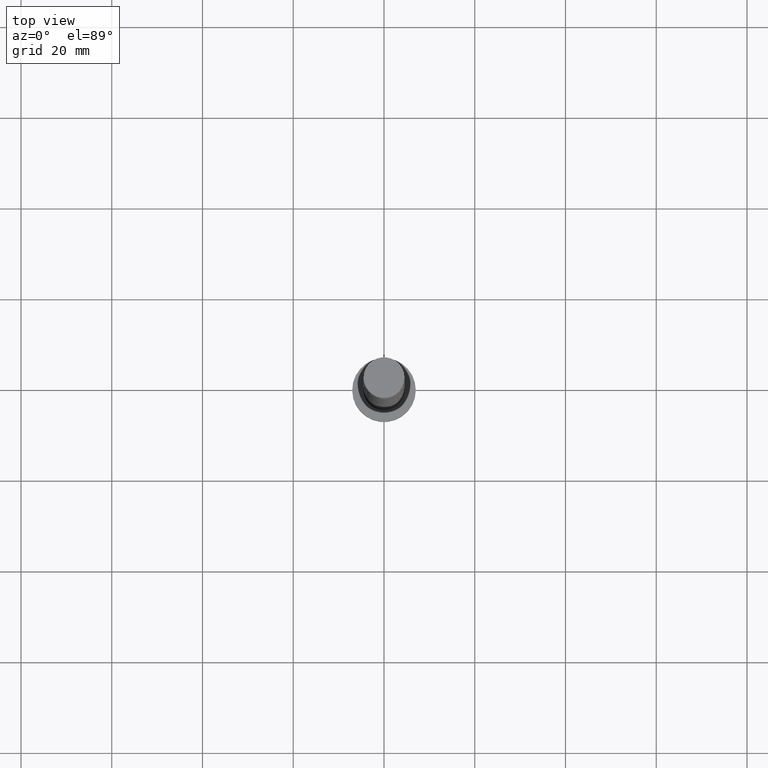
[diagram: clean part render]
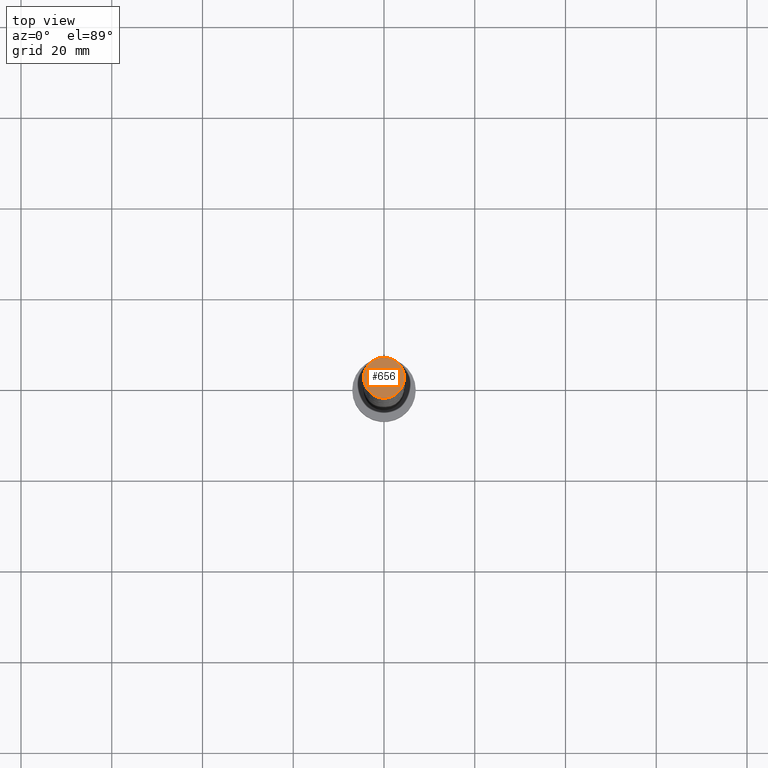
[diagram: same view with one face highlighted and labeled with its STEP entity id]
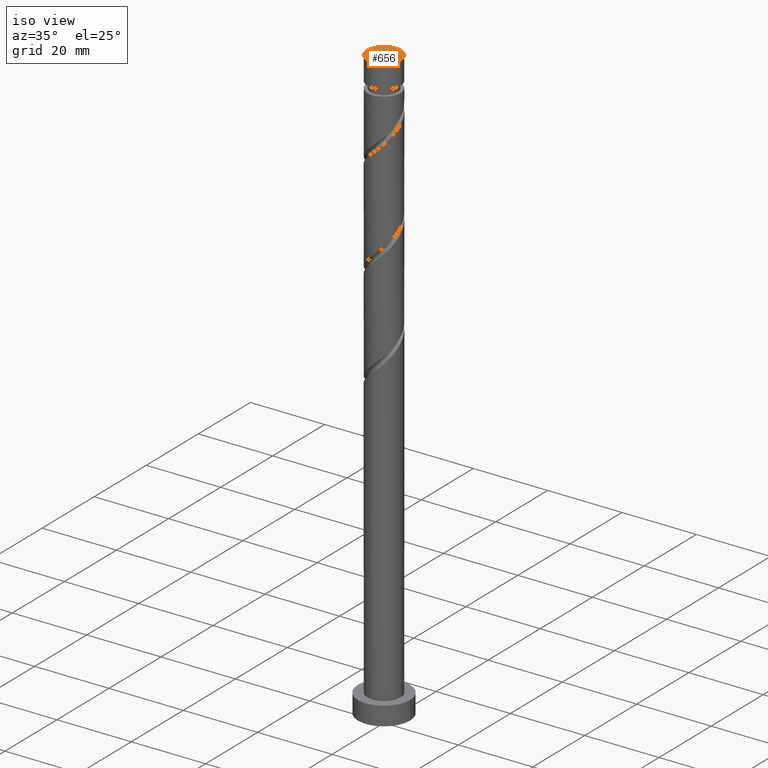
[diagram: same view with one face highlighted and labeled with its STEP entity id]
A machine part, top view. The second image highlights one B-rep face of the part: STEP entity #656.
A second angle (iso view) of the same face is appended — the face is thin or edge-on in the first view.
In plain terms, the highlighted planar face has unit normal (0, 0, 1).
Its self-contained STEP definition (entity closure, byte-faithful):
#44 = DIRECTION ( 'NONE',  ( 0.000000000000000000, 0.000000000000000000, 1.000000000000000000 ) ) ;
#174 = DIRECTION ( 'NONE',  ( 0.000000000000000000, 0.000000000000000000, 1.000000000000000000 ) ) ;
#195 = DIRECTION ( 'NONE',  ( 1.000000000000000000, 0.000000000000000000, 0.000000000000000000 ) ) ;
#231 = FACE_OUTER_BOUND ( 'NONE', #504, .T. ) ;
#360 = PLANE ( 'NONE',  #1340 ) ;
#362 = VERTEX_POINT ( 'NONE', #659 ) ;
#395 = CARTESIAN_POINT ( 'NONE',  ( 4.500000000000000000, 5.510910596163088569E-16, 160.0000000000000000 ) ) ;
#504 = EDGE_LOOP ( 'NONE', ( #1141, #1449 ) ) ;
#576 = DIRECTION ( 'NONE',  ( 1.000000000000000000, 0.000000000000000000, 0.000000000000000000 ) ) ;
#656 = ADVANCED_FACE ( 'NONE', ( #231 ), #360, .T. ) ;
#659 = CARTESIAN_POINT ( 'NONE',  ( -4.500000000000000000, 0.000000000000000000, 160.0000000000000000 ) ) ;
#692 = CIRCLE ( 'NONE', #914, 4.500000000000000000 ) ;
#728 = DIRECTION ( 'NONE',  ( 0.000000000000000000, 0.000000000000000000, 1.000000000000000000 ) ) ;
#821 = VERTEX_POINT ( 'NONE', #395 ) ;
#908 = EDGE_CURVE ( 'NONE', #362, #821, #1584, .T. ) ;
#914 = AXIS2_PLACEMENT_3D ( 'NONE', #943, #174, #195 ) ;
#943 = CARTESIAN_POINT ( 'NONE',  ( 0.000000000000000000, 0.000000000000000000, 160.0000000000000000 ) ) ;
#1141 = ORIENTED_EDGE ( 'NONE', *, *, #908, .T. ) ;
#1340 = AXIS2_PLACEMENT_3D ( 'NONE', #1374, #728, #1523 ) ;
#1374 = CARTESIAN_POINT ( 'NONE',  ( 0.000000000000000000, 0.000000000000000000, 160.0000000000000000 ) ) ;
#1449 = ORIENTED_EDGE ( 'NONE', *, *, #1575, .T. ) ;
#1486 = CARTESIAN_POINT ( 'NONE',  ( 0.000000000000000000, 0.000000000000000000, 160.0000000000000000 ) ) ;
#1500 = AXIS2_PLACEMENT_3D ( 'NONE', #1486, #44, #576 ) ;
#1523 = DIRECTION ( 'NONE',  ( 1.000000000000000000, 0.000000000000000000, -0.000000000000000000 ) ) ;
#1575 = EDGE_CURVE ( 'NONE', #821, #362, #692, .T. ) ;
#1584 = CIRCLE ( 'NONE', #1500, 4.500000000000000000 ) ;